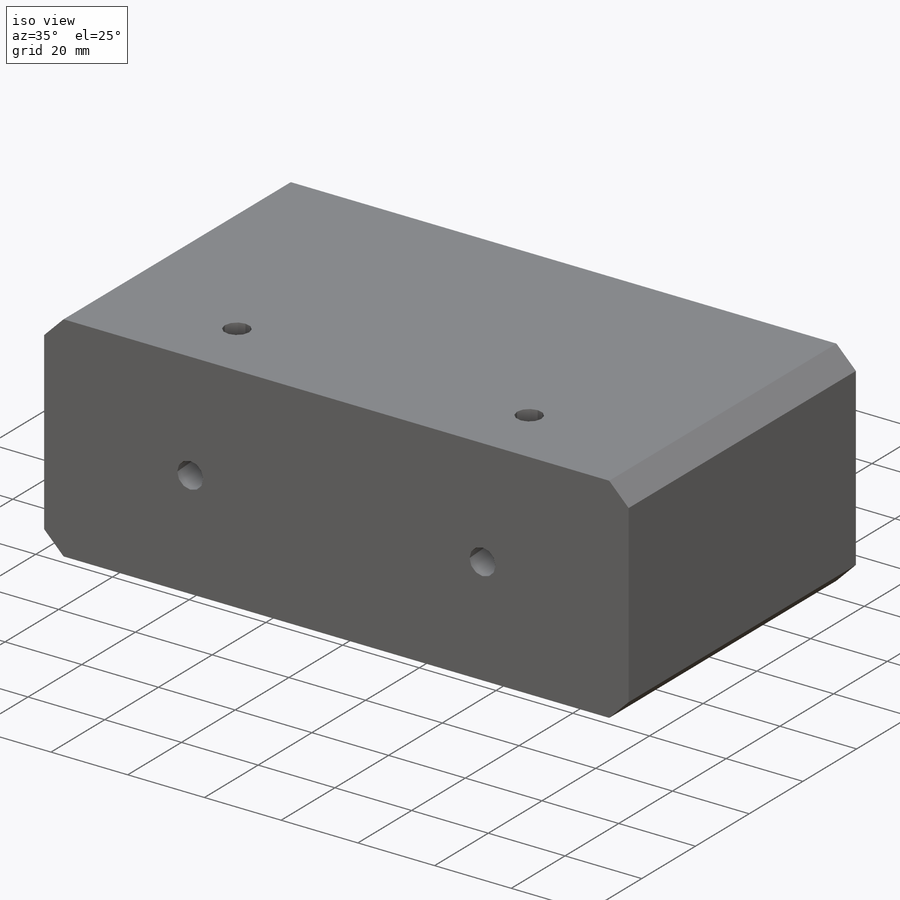
[diagram: iso view]
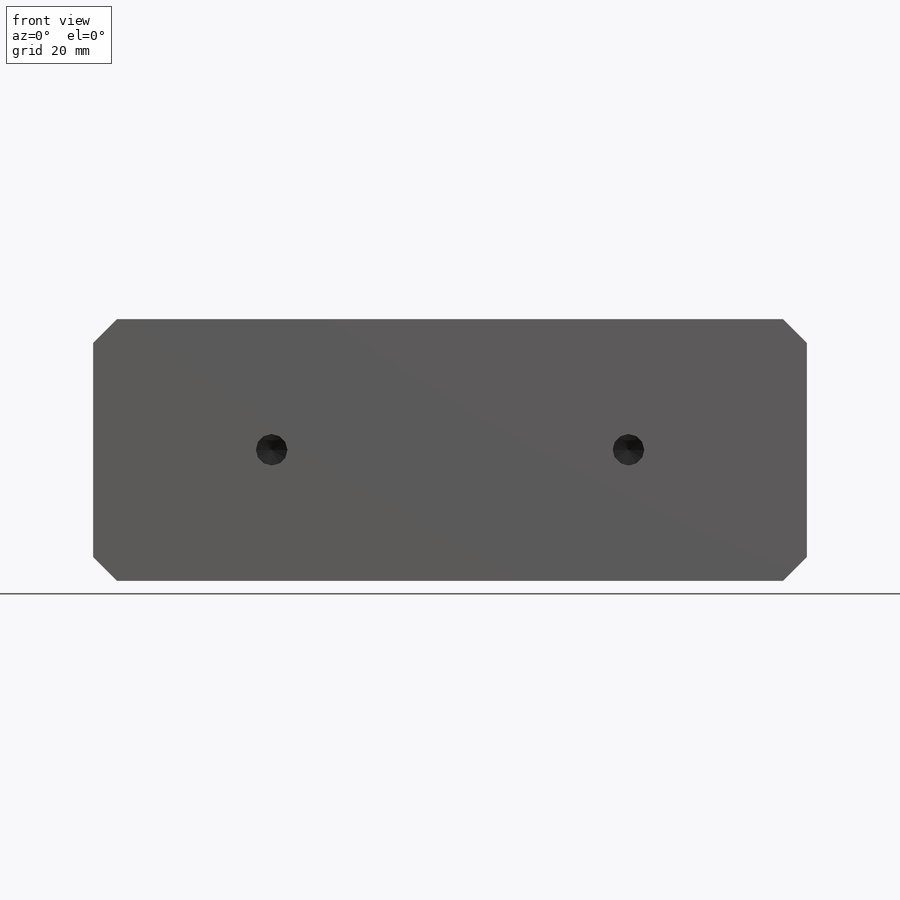
[diagram: front view]
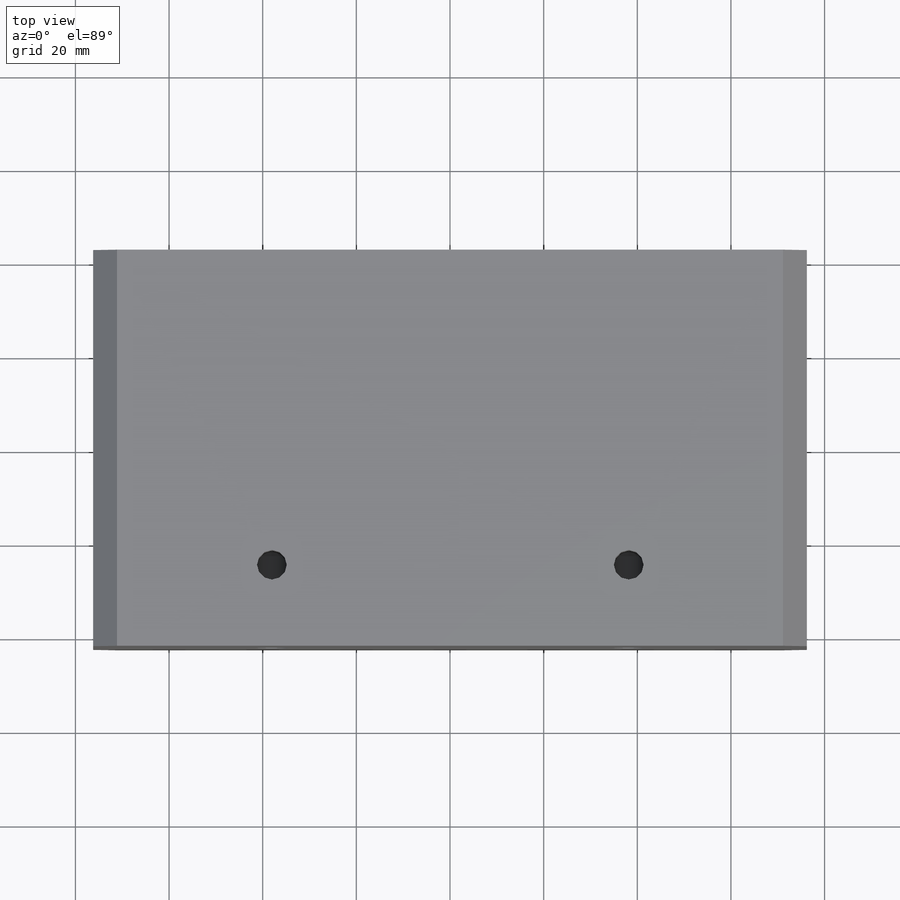
[diagram: top view]
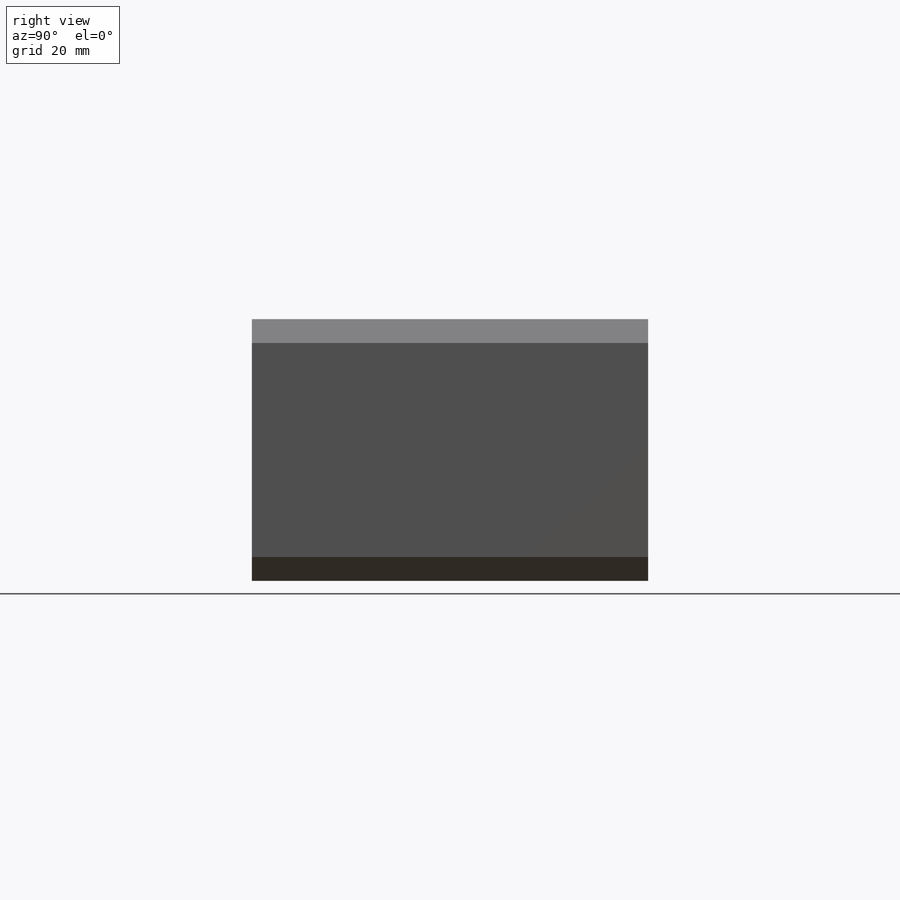
[diagram: right view]
SOLIDWORKS PART (.sldprt)
format: sldprt  version: not decoded by parser v0  size: 221,696 bytes
history: native  units: mm
features: sketch x5, hole x2, material x1, extrude x1, chamfer x1 + 1 further entry (+10 scaffold rows collapsed)
feature tree (21):
  scaffold x10  (default folders/planes/origin — collapsed)
  material  "304, 316 OR 302 SSTL"
  "Origin"  ID=392984584
  sketch  "Sketch1"  dims[D1=152.4mm D2=84.6074mm]
  extrude  "Extrude1"  Depth=55.88mm
  hole  "Tapped Hole for 1/4-20 Helicoil1"  Diameter=6.7564mm Depth=19.685mm
  sketch  "Sketch3"  dims[D1=27.94mm D2=38.1mm D3=27.94mm D4=38.1mm]
  sketch  "Sketch2"  dims[hole-wizard template sketch: 46 standard entries collapsed; hole parameters kept: c15.Tap Drill Dia.=6.7564mm c15.Tap Drill Depth=19.685mm c15.D3=~14.816244mm c15.Drill Angle=118.0deg]
  hole  "1/4 (0.25) Diameter Hole1"  Diameter=6.35mm Depth=27.94mm
  sketch  "Sketch5"  dims[D1=76.2mm]
  sketch  "Sketch4"  dims[hole-wizard template sketch: 47 standard entries collapsed; hole parameters kept: c15.Hole Depth=27.94mm c15.D3=~14.816244mm c15.Drill Angle=118.0deg]
  chamfer  "Chamfer1"  Distance=5.08mm Angle=45deg
decode coverage: 9 of 9 modeling features carry decoded parameters; 1 rows unclassified (native names shown)
note: ~ marks probable driven/reference dimensions
note: suppression state not decoded; provenance and decode notes live in map.json
